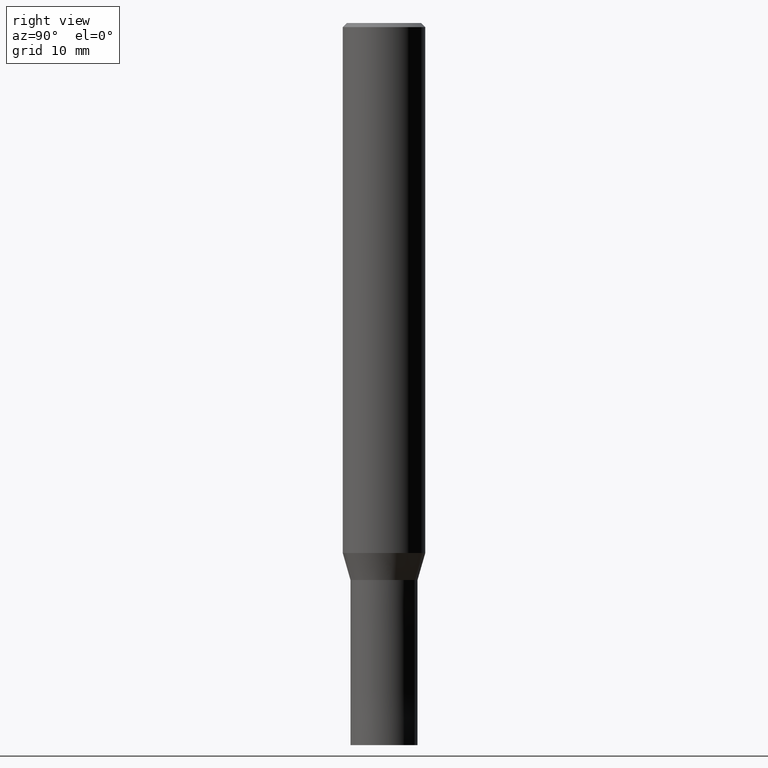
[diagram: clean part render]
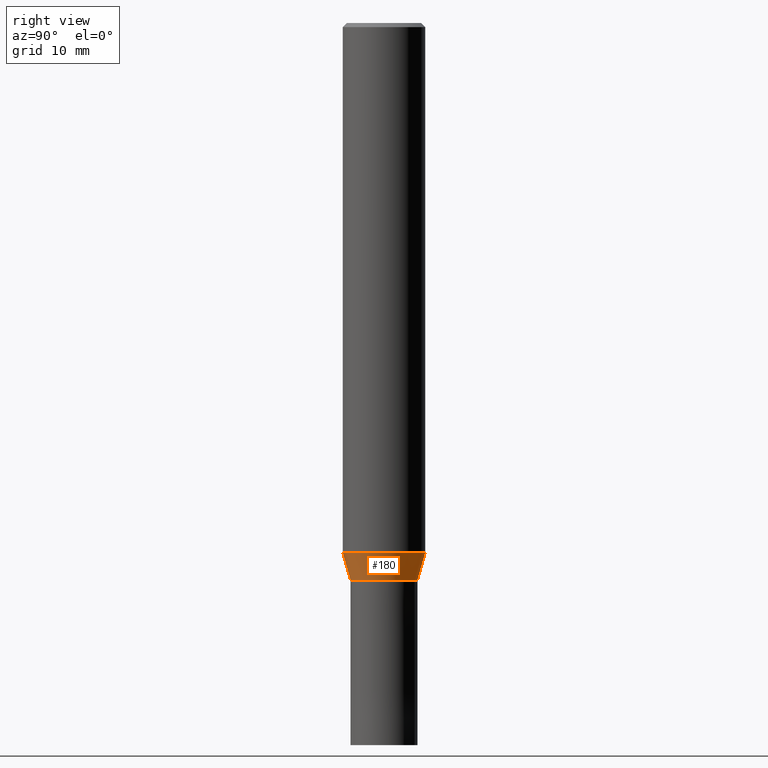
[diagram: same view with one face highlighted and labeled with its STEP entity id]
A machine part, right view. The second image highlights one B-rep face of the part: STEP entity #180.
In plain terms, the highlighted conical surface has half-angle 15.997 deg.
Its self-contained STEP definition (entity closure, byte-faithful):
#86=EDGE_CURVE('',#128,#122,#207,.T.);
#88=VERTEX_POINT('',#209);
#104=EDGE_CURVE('',#128,#88,#229,.T.);
#122=VERTEX_POINT('',#248);
#128=VERTEX_POINT('',#256);
#130=VERTEX_POINT('',#258);
#166=EDGE_CURVE('',#130,#122,#300,.T.);
#172=EDGE_CURVE('',#88,#130,#306,.T.);
#180=ADVANCED_FACE('',(#314),#315,.T.);
#207=CIRCLE('',#337,3.99995);
#209=CARTESIAN_POINT('',(0.0,3.24995,-54.0));
#229=LINE('',#364,#365);
#248=CARTESIAN_POINT('',(4.89836418497182E-016,-3.99995,-51.384));
#256=CARTESIAN_POINT('',(0.0,3.99995,-51.384));
#258=CARTESIAN_POINT('',(3.97990941960504E-016,-3.24995,-54.0));
#300=LINE('',#451,#452);
#306=CIRCLE('',#459,3.24995);
#314=FACE_OUTER_BOUND('',#469,.T.);
#315=CONICAL_SURFACE('',#470,3.62495,0.279208199033747);
#337=AXIS2_PLACEMENT_3D('',#477,#478,#479);
#364=CARTESIAN_POINT('',(-4.43913680228843E-016,3.62495,-52.692));
#365=VECTOR('',#504,1.0);
#451=CARTESIAN_POINT('',(4.43913680228843E-016,-3.62495,-52.692));
#452=VECTOR('',#598,1.0);
#459=AXIS2_PLACEMENT_3D('',#603,#604,#605);
#469=EDGE_LOOP('',(#613,#614,#615,#616));
#470=AXIS2_PLACEMENT_3D('',#617,#618,#619);
#477=CARTESIAN_POINT('',(0.0,0.0,-51.384));
#478=DIRECTION('',(0.0,0.0,-1.0));
#479=DIRECTION('',(0.0,1.0,0.0));
#504=DIRECTION('',(3.37494895041124E-017,-0.275594597388538,-0.961273955691222));
#598=DIRECTION('',(3.37494895041124E-017,-0.275594597388538,0.961273955691222));
#603=CARTESIAN_POINT('',(0.0,0.0,-54.0));
#604=DIRECTION('',(0.0,0.0,-1.0));
#605=DIRECTION('',(0.0,1.0,0.0));
#613=ORIENTED_EDGE('',*,*,#104,.F.);
#614=ORIENTED_EDGE('',*,*,#86,.T.);
#615=ORIENTED_EDGE('',*,*,#166,.F.);
#616=ORIENTED_EDGE('',*,*,#172,.F.);
#617=CARTESIAN_POINT('',(0.0,0.0,-52.692));
#618=DIRECTION('',(-0.0,-0.0,1.0));
#619=DIRECTION('',(0.0,1.0,0.0));